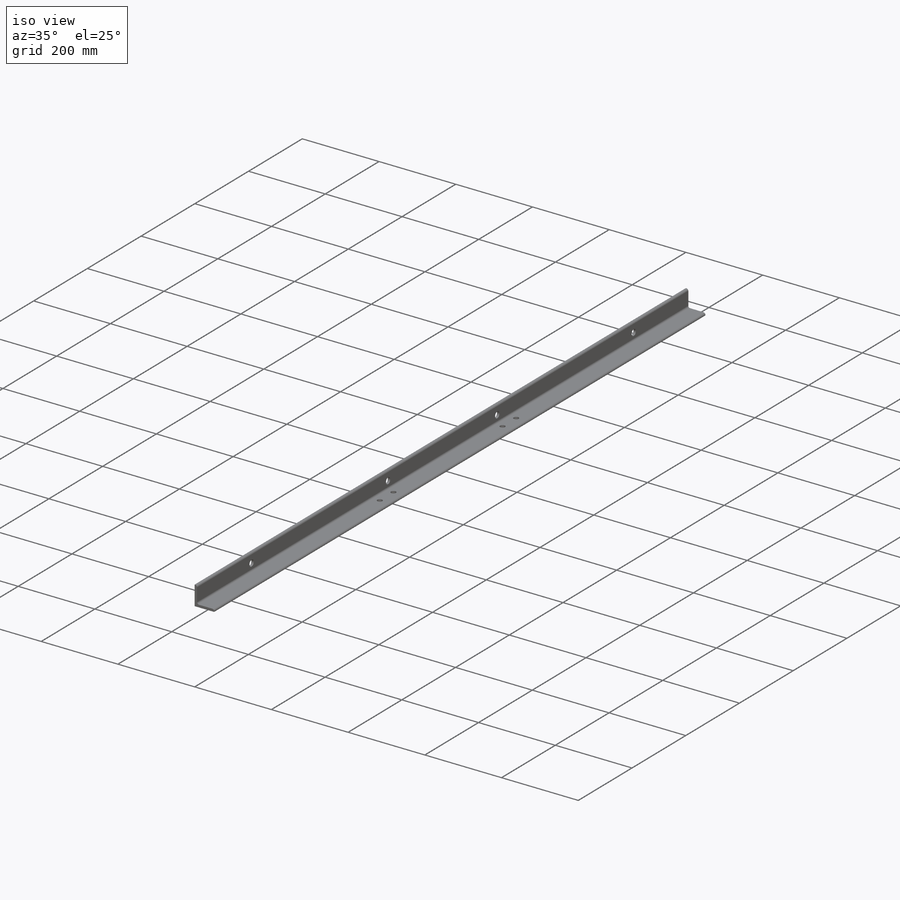
[diagram: iso view]
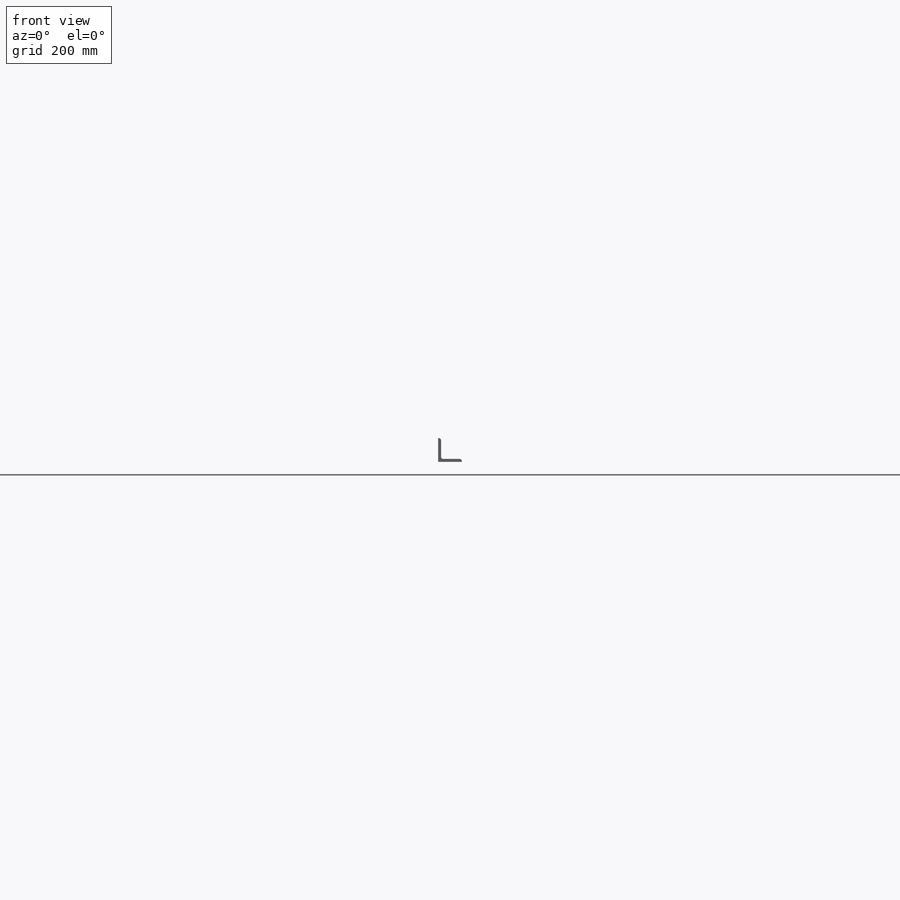
[diagram: front view]
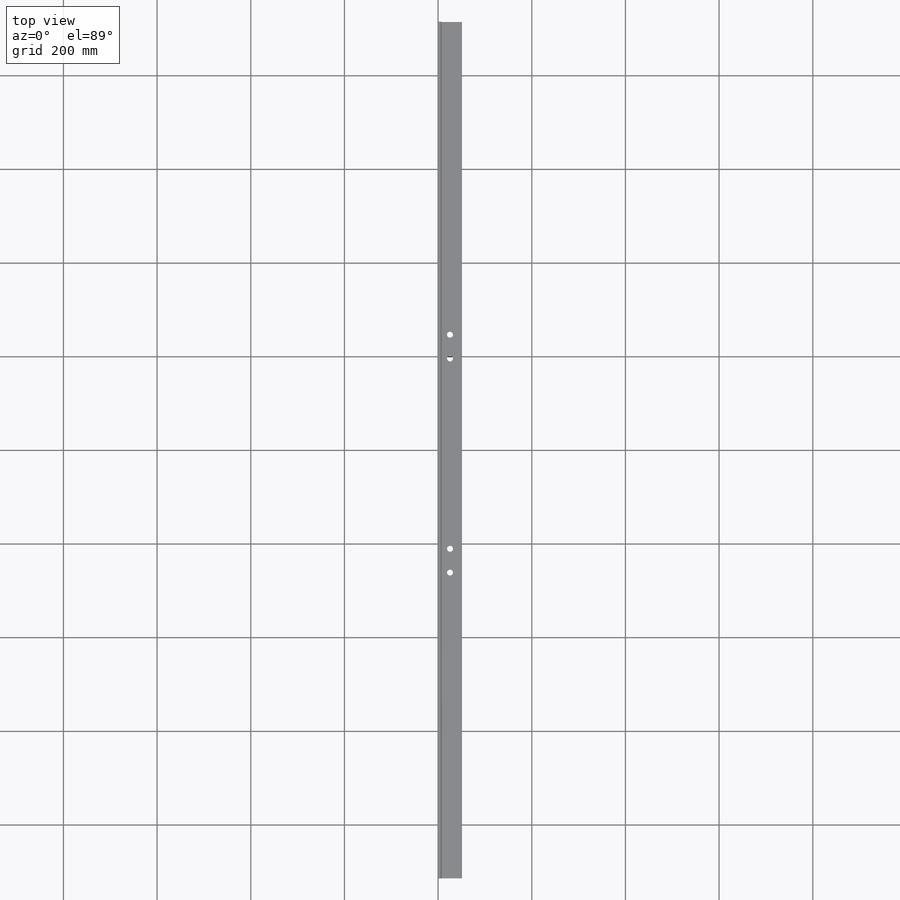
[diagram: top view]
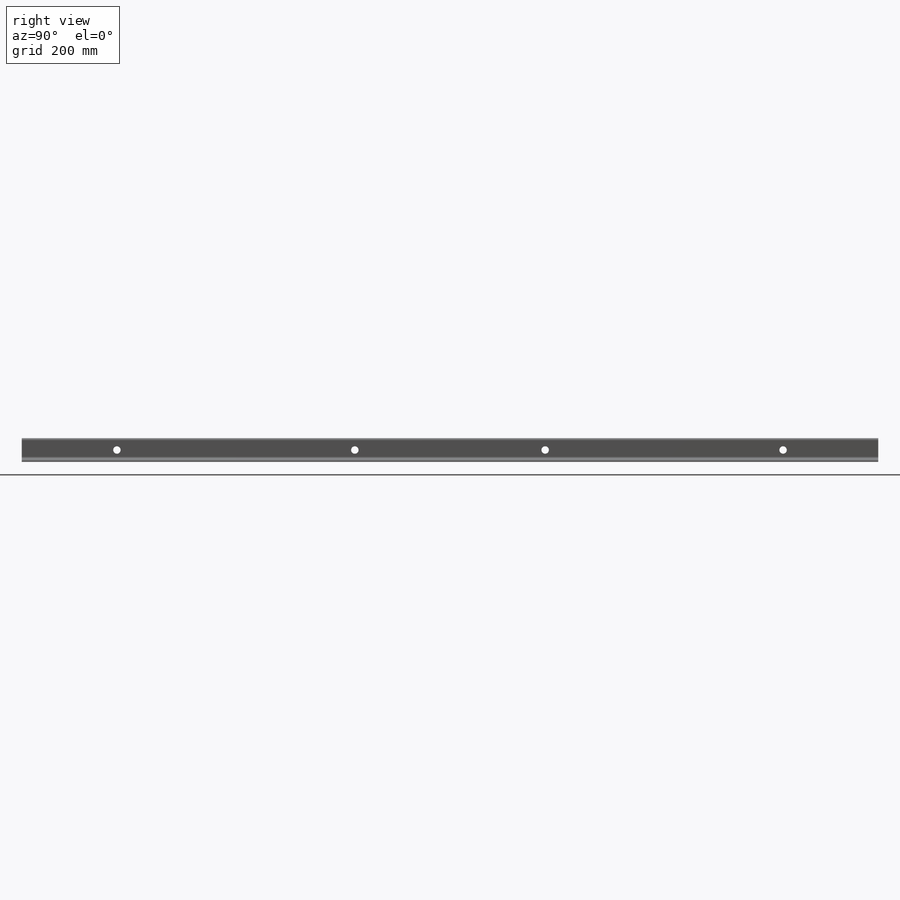
[diagram: right view]
SOLIDWORKS PART (.sldprt)
format: sldprt  version: not decoded by parser v0  size: 257,024 bytes
history: native  units: mm
features: sketch x6, hole x2, material x1, extrude x1, cut_extrude x1 (+11 scaffold rows collapsed)
feature tree (22):
  scaffold x11  (default folders/planes/origin — collapsed)
  material  "Material <not specified>"
  sketch  "Sketch1"  dims[c1.D2=3.175mm c1.Radius_1=4.7625mm c1.Radius_2=4.7625mm c1.V_leg=50.8mm c1.H_leg=50.8mm c1.Thickness=6.35mm c1.D1=6.35mm c1.D3=46.0375mm c2.V_leg=50.8mm c2.H_leg=50.8mm c2.Flat_wid=~1.59258mm c2.D3=6.35mm c2.D2=~1.59258mm]
  extrude  "Boss-Extrude1"  Depth=1828.8mm
  hole  "13/16 (0.8125) Diameter Hole1"  Diameter=12.7mm Depth=6.35mm
  sketch  "Sketch4"  dims[c1.D3=12.7mm c1.D4=12.7mm c1.D1=571.5mm c1.D2=571.5mm c2.D3=~572.064166mm c2.D4=571.5mm c2.D5=~571.872683mm c3.D4=571.5mm c3.D5=571.5mm c4.D4=571.5mm c4.D2=703.834mm c4.D3=~572.064166mm c4.D1=718.566mm c5.D3=50.8mm c5.D4=50.8mm]
  sketch  "Sketch3"  dims[hole-wizard template sketch: 60 standard entries collapsed; hole parameters kept: c18.Thru Hole Depth=6.35mm]
  hole  "5/8 (0.625) Diameter Hole1"  Diameter=15.875mm Depth=6.35mm
  sketch  "Sketch6"  dims[c1.D1=508.0mm c1.D2=508.0mm c1.D3=101.6mm c1.D4=406.4mm c2.D3=203.2mm]
  sketch  "Sketch5"  dims[hole-wizard template sketch: 60 standard entries collapsed; hole parameters kept: c18.Thru Hole Depth=6.35mm]
  sketch  "Sketch7"  dims[c1.D1=12.7mm c1.D2=12.7mm c2.D1=12.7mm c2.D2=12.7mm c3.D1=50.8mm c3.D2=50.8mm c4.D1=50.8mm c4.D2=50.8mm]
  cut_extrude  "Cut-Extrude1"  [1 undecoded]
decode coverage: 9 of 10 modeling features carry decoded parameters
note: ~ marks probable driven/reference dimensions
note: 1 parameter value undecoded
note: suppression state not decoded; provenance and decode notes live in map.json
